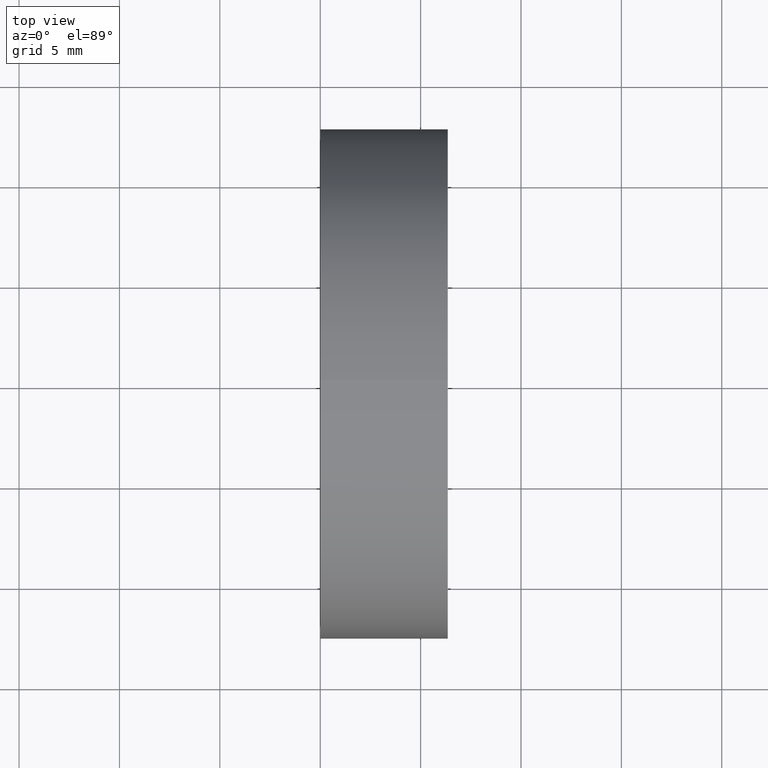
[diagram: clean part render]
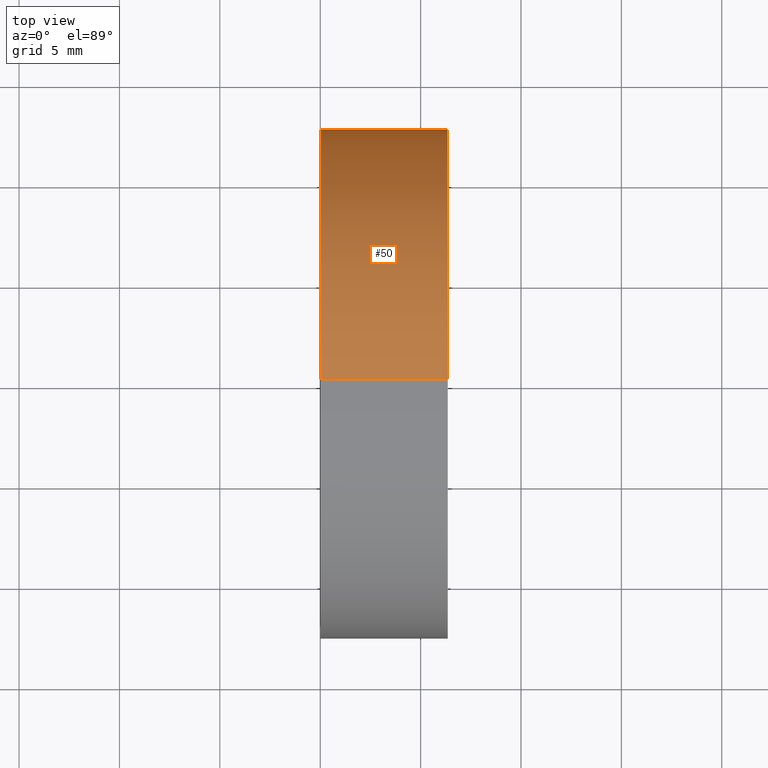
[diagram: same view with one face highlighted and labeled with its STEP entity id]
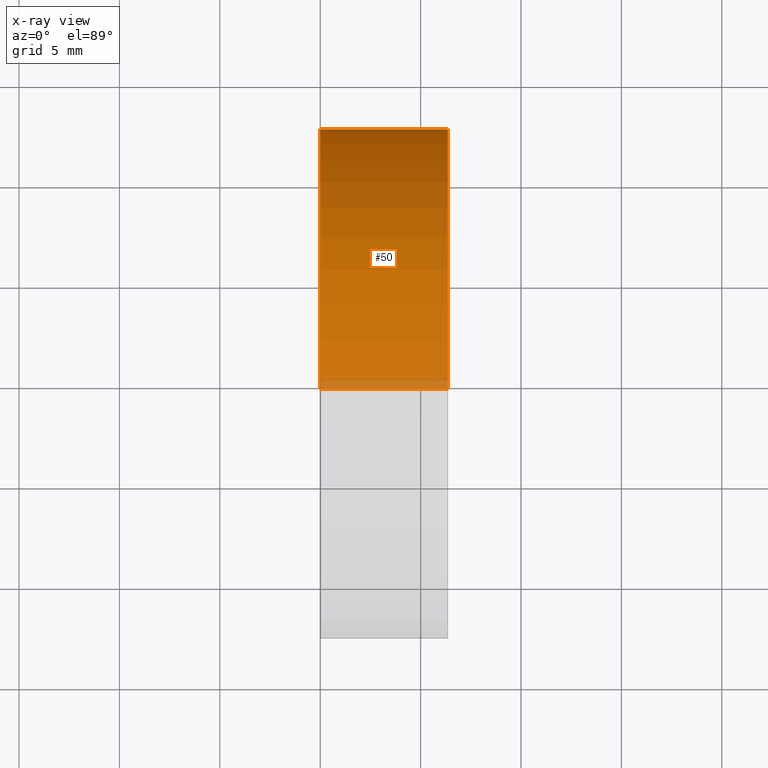
[diagram: x-ray of the same camera — body ghosted, the highlighted face saturated]
A machine part, top view. The second image highlights one B-rep face of the part: STEP entity #50.
The next image is the same camera in x-ray: the body ghosted, the highlighted face saturated — about 3% of this face is hidden behind the body in this view.
In plain terms, the highlighted cylindrical surface (partial cylindrical patch) has radius 12.7 mm, axis along (-1, -0, -0).
Its self-contained STEP definition (entity closure, byte-faithful):
#3 = CARTESIAN_POINT ( 'NONE',  ( 0.0000000000000000000, 0.0000000000000000000, 0.0000000000000000000 ) ) ;
#4 = CYLINDRICAL_SURFACE ( 'NONE', #127, 12.70000000000000300 ) ;
#10 = ORIENTED_EDGE ( 'NONE', *, *, #38, .T. ) ;
#12 = LINE ( 'NONE', #123, #45 ) ;
#19 = CARTESIAN_POINT ( 'NONE',  ( 6.353632297579126000, 0.0000000000000000000, 0.0000000000000000000 ) ) ;
#21 = DIRECTION ( 'NONE',  ( 0.0000000000000000000, 0.0000000000000000000, 1.000000000000000000 ) ) ;
#25 = EDGE_CURVE ( 'NONE', #64, #114, #41, .T. ) ;
#32 = DIRECTION ( 'NONE',  ( -1.000000000000000000, -0.0000000000000000000, -0.0000000000000000000 ) ) ;
#33 = CARTESIAN_POINT ( 'NONE',  ( 6.353632297579126000, 1.555301434917142400E-015, -12.70000000000003100 ) ) ;
#38 = EDGE_CURVE ( 'NONE', #119, #64, #153, .T. ) ;
#40 = CIRCLE ( 'NONE', #120, 12.69999999999999900 ) ;
#41 = LINE ( 'NONE', #121, #110 ) ;
#45 = VECTOR ( 'NONE', #108, 1000.000000000000000 ) ;
#50 = ADVANCED_FACE ( 'NONE', ( #77 ), #4, .T. ) ;
#51 = ORIENTED_EDGE ( 'NONE', *, *, #56, .F. ) ;
#56 = EDGE_CURVE ( 'NONE', #119, #97, #12, .T. ) ;
#57 = CARTESIAN_POINT ( 'NONE',  ( 0.0000000000000000000, 0.0000000000000000000, 12.69999999999999900 ) ) ;
#64 = VERTEX_POINT ( 'NONE', #33 ) ;
#69 = CARTESIAN_POINT ( 'NONE',  ( 6.353632297579126000, 0.0000000000000000000, 12.70000000000003100 ) ) ;
#76 = EDGE_CURVE ( 'NONE', #97, #114, #40, .T. ) ;
#77 = FACE_OUTER_BOUND ( 'NONE', #141, .T. ) ;
#83 = DIRECTION ( 'NONE',  ( 0.0000000000000000000, 0.0000000000000000000, 1.000000000000000000 ) ) ;
#96 = DIRECTION ( 'NONE',  ( -1.000000000000000000, -0.0000000000000000000, -0.0000000000000000000 ) ) ;
#97 = VERTEX_POINT ( 'NONE', #57 ) ;
#108 = DIRECTION ( 'NONE',  ( -1.000000000000000000, -0.0000000000000000000, -0.0000000000000000000 ) ) ;
#110 = VECTOR ( 'NONE', #156, 1000.000000000000000 ) ;
#111 = CARTESIAN_POINT ( 'NONE',  ( 0.0000000000000000000, 0.0000000000000000000, 0.0000000000000000000 ) ) ;
#114 = VERTEX_POINT ( 'NONE', #133 ) ;
#119 = VERTEX_POINT ( 'NONE', #69 ) ;
#120 = AXIS2_PLACEMENT_3D ( 'NONE', #111, #32, #21 ) ;
#121 = CARTESIAN_POINT ( 'NONE',  ( 0.0000000000000000000, 1.555301434917138800E-015, -12.70000000000000300 ) ) ;
#123 = CARTESIAN_POINT ( 'NONE',  ( 0.0000000000000000000, 0.0000000000000000000, 12.70000000000000300 ) ) ;
#124 = DIRECTION ( 'NONE',  ( -1.000000000000000000, -0.0000000000000000000, -0.0000000000000000000 ) ) ;
#127 = AXIS2_PLACEMENT_3D ( 'NONE', #3, #96, #155 ) ;
#133 = CARTESIAN_POINT ( 'NONE',  ( 0.0000000000000000000, 1.555301434917138600E-015, -12.69999999999999900 ) ) ;
#139 = ORIENTED_EDGE ( 'NONE', *, *, #76, .F. ) ;
#141 = EDGE_LOOP ( 'NONE', ( #10, #145, #139, #51 ) ) ;
#145 = ORIENTED_EDGE ( 'NONE', *, *, #25, .T. ) ;
#153 = CIRCLE ( 'NONE', #164, 12.70000000000000600 ) ;
#155 = DIRECTION ( 'NONE',  ( 0.0000000000000000000, 0.0000000000000000000, 1.000000000000000000 ) ) ;
#156 = DIRECTION ( 'NONE',  ( -1.000000000000000000, -0.0000000000000000000, -0.0000000000000000000 ) ) ;
#164 = AXIS2_PLACEMENT_3D ( 'NONE', #19, #124, #83 ) ;